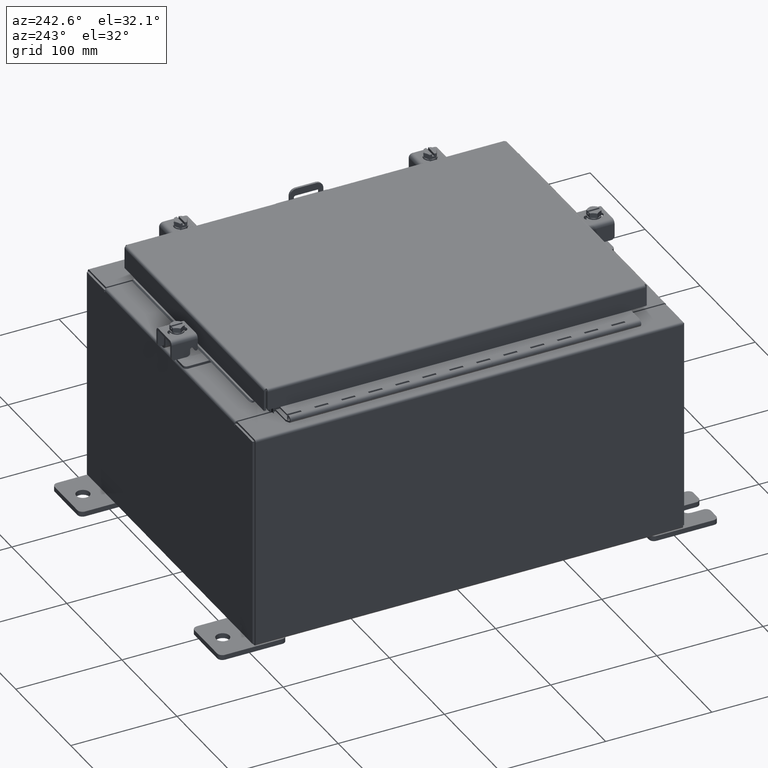
[diagram: clean part render]
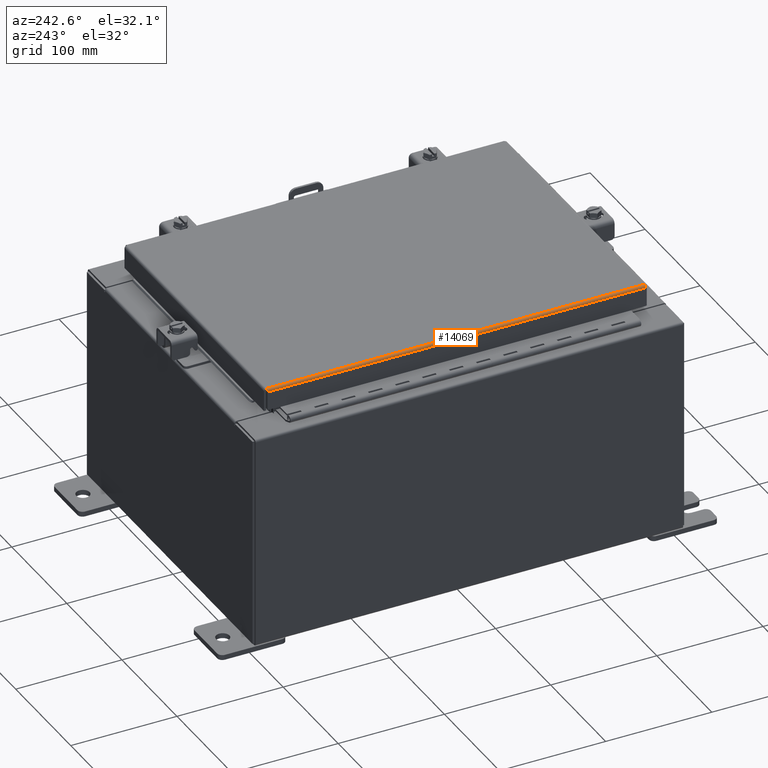
[diagram: same view with one face highlighted and labeled with its STEP entity id]
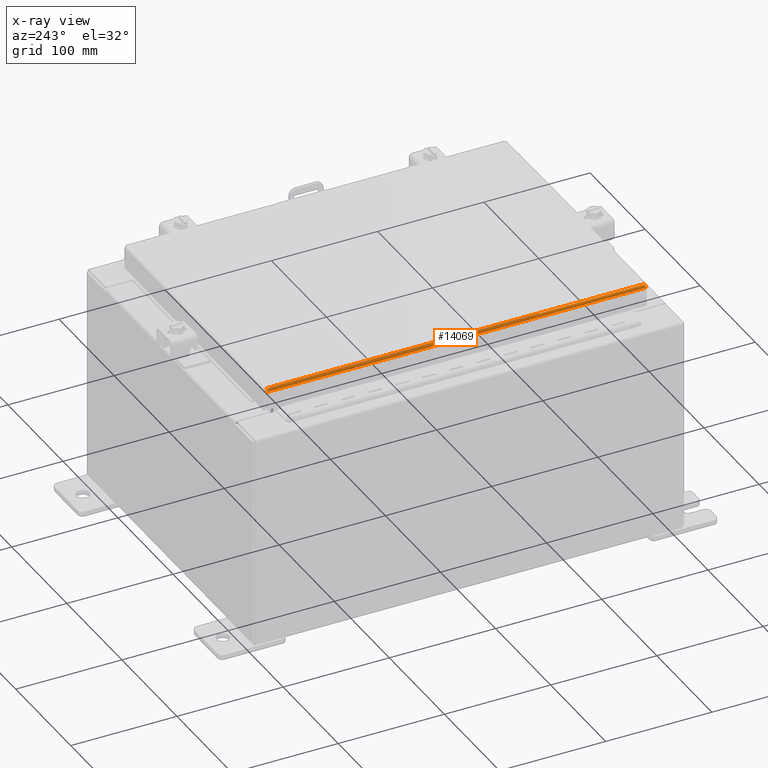
[diagram: x-ray of the same camera — body ghosted, the highlighted face saturated]
A machine part, auxiliary view. The second image highlights one B-rep face of the part: STEP entity #14069.
The next image is the same camera in x-ray: the body ghosted, the highlighted face saturated — about 0% of this face is hidden behind the body in this view.
In plain terms, the highlighted cylindrical surface (edge-blend (fillet) strip) has radius 2.2276 mm, axis along (0, 1, 0).
Its self-contained STEP definition (entity closure, byte-faithful):
#154 = B_SPLINE_CURVE_WITH_KNOTS ( 'NONE', 3,
 ( #15951, #16087, #16245, #15956, #15916, #16496, #15891, #15990, #15861, #15782 ),
 .UNSPECIFIED., .F., .F.,
 ( 4, 2, 2, 2, 4 ),
 ( 0.0000000000000000000, 0.2500000000000000000, 0.5000000000000000000, 0.7500000000000000000, 1.000000000000000000 ),
 .UNSPECIFIED. ) ;
#1440 = CARTESIAN_POINT ( 'NONE',  ( -5.075717403743813500, -7.005348220313559100, -0.06474471054169118900 ) ) ;
#1573 = CYLINDRICAL_SURFACE ( 'NONE', #10896, 0.08770000000000026400 ) ;
#2342 = LINE ( 'NONE', #11865, #7783 ) ;
#2387 = CARTESIAN_POINT ( 'NONE',  ( -4.990300000000000400, -7.006300000000000400, -2.048885995248197400E-016 ) ) ;
#4317 = DIRECTION ( 'NONE',  ( -0.0000000000000000000, 1.000000000000000000, -0.0000000000000000000 ) ) ;
#4602 = CARTESIAN_POINT ( 'NONE',  ( -4.990300000000000400, 7.006300000000000400, -2.048885995248197400E-016 ) ) ;
#5372 = LINE ( 'NONE', #20587, #21430 ) ;
#6097 = EDGE_CURVE ( 'NONE', #10241, #6713, #5372, .T. ) ;
#6632 = ORIENTED_EDGE ( 'NONE', *, *, #10196, .F. ) ;
#6713 = VERTEX_POINT ( 'NONE', #15739 ) ;
#7783 = VECTOR ( 'NONE', #23753, 39.37007874015748100 ) ;
#9805 = EDGE_CURVE ( 'NONE', #10241, #13312, #154, .T. ) ;
#9987 = ORIENTED_EDGE ( 'NONE', *, *, #6097, .T. ) ;
#10196 = EDGE_CURVE ( 'NONE', #18026, #6713, #10581, .T. ) ;
#10241 = VERTEX_POINT ( 'NONE', #20665 ) ;
#10581 = B_SPLINE_CURVE_WITH_KNOTS ( 'NONE', 3,
 ( #15261, #14788, #15426, #15460, #15661, #25340, #16020, #1440, #15785, #17671 ),
 .UNSPECIFIED., .F., .F.,
 ( 4, 2, 2, 2, 4 ),
 ( 0.0000000000000000000, 0.2500000000000000000, 0.5000000000000000000, 0.7500000000000000000, 1.000000000000000000 ),
 .UNSPECIFIED. ) ;
#10896 = AXIS2_PLACEMENT_3D ( 'NONE', #15123, #4317, #15159 ) ;
#11865 = CARTESIAN_POINT ( 'NONE',  ( -4.990300000000000400, 7.006300000000000400, -2.048885995248197400E-016 ) ) ;
#13312 = VERTEX_POINT ( 'NONE', #4602 ) ;
#13316 = DIRECTION ( 'NONE',  ( 3.797360338743712300E-031, -1.000000000000000000, -1.119390514946887900E-045 ) ) ;
#14069 = ADVANCED_FACE ( 'NONE', ( #17746 ), #1573, .T. ) ;
#14788 = CARTESIAN_POINT ( 'NONE',  ( -5.001779903154992500, -7.006204822031357100, -2.043883832173860400E-016 ) ) ;
#15123 = CARTESIAN_POINT ( 'NONE',  ( -4.990300000000000400, 7.006300000000000400, -0.08770000000000030500 ) ) ;
#15159 = DIRECTION ( 'NONE',  ( -1.000000000000000000, 0.0000000000000000000, 3.114992011019675100E-015 ) ) ;
#15261 = CARTESIAN_POINT ( 'NONE',  ( -4.990300000000000400, -7.006300000000000400, -2.048885995248197400E-016 ) ) ;
#15426 = CARTESIAN_POINT ( 'NONE',  ( -5.013255289458309800, -7.006109644062711100, -0.002282596256188924700 ) ) ;
#15460 = CARTESIAN_POINT ( 'NONE',  ( -5.034467384578528400, -7.005919288125420900, -0.01106893374133176100 ) ) ;
#15661 = CARTESIAN_POINT ( 'NONE',  ( -5.044195747341800200, -7.005824110156779300, -0.01756921792167976500 ) ) ;
#15739 = CARTESIAN_POINT ( 'NONE',  ( -5.078000000000001200, -7.005157864376269700, -0.08770000000000007000 ) ) ;
#15782 = CARTESIAN_POINT ( 'NONE',  ( -4.990300000000000400, 7.006300000000000400, -2.048885995248197400E-016 ) ) ;
#15785 = CARTESIAN_POINT ( 'NONE',  ( -5.078000000000001200, -7.005253042344914900, -0.07622009684500735700 ) ) ;
#15861 = CARTESIAN_POINT ( 'NONE',  ( -5.001779903154994300, 7.006204822031357100, -2.037547758946368100E-016 ) ) ;
#15891 = CARTESIAN_POINT ( 'NONE',  ( -5.034467384578530200, 7.005919288125422600, -0.01106893374133176100 ) ) ;
#15916 = CARTESIAN_POINT ( 'NONE',  ( -5.060430782078321400, 7.005633754219491700, -0.03380425265820009200 ) ) ;
#15951 = CARTESIAN_POINT ( 'NONE',  ( -5.078000000000001200, 7.005157864376269700, -0.08770000000000004200 ) ) ;
#15956 = CARTESIAN_POINT ( 'NONE',  ( -5.066931066258668200, 7.005538576250844900, -0.04353261542147222200 ) ) ;
#15990 = CARTESIAN_POINT ( 'NONE',  ( -5.013255289458311600, 7.006109644062711100, -0.002282596256188923800 ) ) ;
#16020 = CARTESIAN_POINT ( 'NONE',  ( -5.066931066258668200, -7.005538576250847500, -0.04353261542147222900 ) ) ;
#16087 = CARTESIAN_POINT ( 'NONE',  ( -5.078000000000001200, 7.005253042344914900, -0.07622009684500732900 ) ) ;
#16245 = CARTESIAN_POINT ( 'NONE',  ( -5.075717403743813500, 7.005348220313559100, -0.06474471054169118900 ) ) ;
#16496 = CARTESIAN_POINT ( 'NONE',  ( -5.044195747341799300, 7.005824110156780200, -0.01756921792167976500 ) ) ;
#16703 = ORIENTED_EDGE ( 'NONE', *, *, #24309, .F. ) ;
#17220 = ORIENTED_EDGE ( 'NONE', *, *, #9805, .F. ) ;
#17671 = CARTESIAN_POINT ( 'NONE',  ( -5.078000000000001200, -7.005157864376269700, -0.08770000000000007000 ) ) ;
#17746 = FACE_OUTER_BOUND ( 'NONE', #22674, .T. ) ;
#18026 = VERTEX_POINT ( 'NONE', #2387 ) ;
#20587 = CARTESIAN_POINT ( 'NONE',  ( -5.078000000000001200, -7.094000000000000300, -0.08770000000000004200 ) ) ;
#20665 = CARTESIAN_POINT ( 'NONE',  ( -5.078000000000001200, 7.005157864376269700, -0.08770000000000004200 ) ) ;
#21430 = VECTOR ( 'NONE', #13316, 39.37007874015748100 ) ;
#22674 = EDGE_LOOP ( 'NONE', ( #16703, #17220, #9987, #6632 ) ) ;
#23753 = DIRECTION ( 'NONE',  ( 0.0000000000000000000, -1.000000000000000000, 0.0000000000000000000 ) ) ;
#24309 = EDGE_CURVE ( 'NONE', #13312, #18026, #2342, .T. ) ;
#25340 = CARTESIAN_POINT ( 'NONE',  ( -5.060430782078324100, -7.005633754219490000, -0.03380425265820009900 ) ) ;